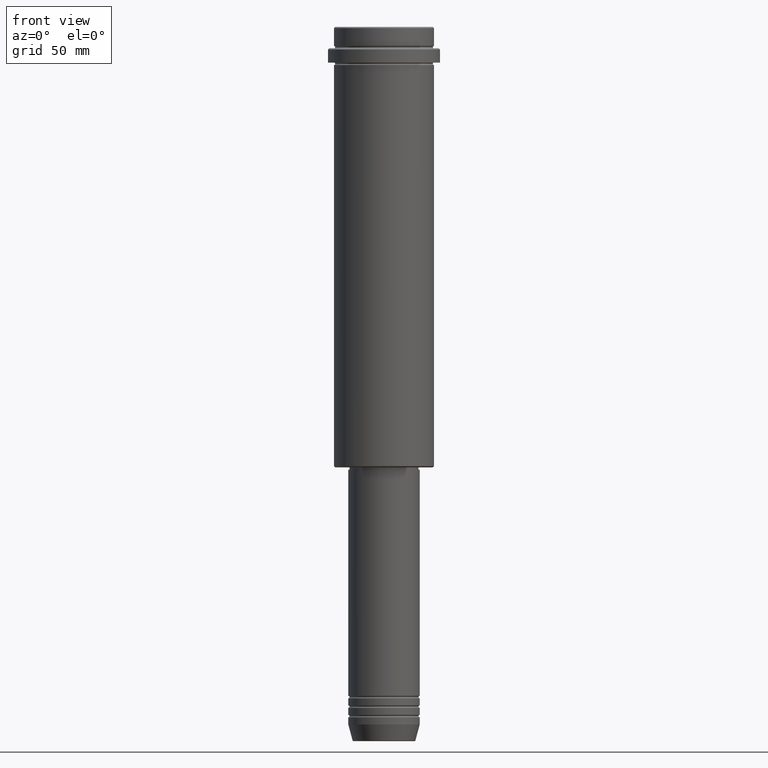
[diagram: clean part render]
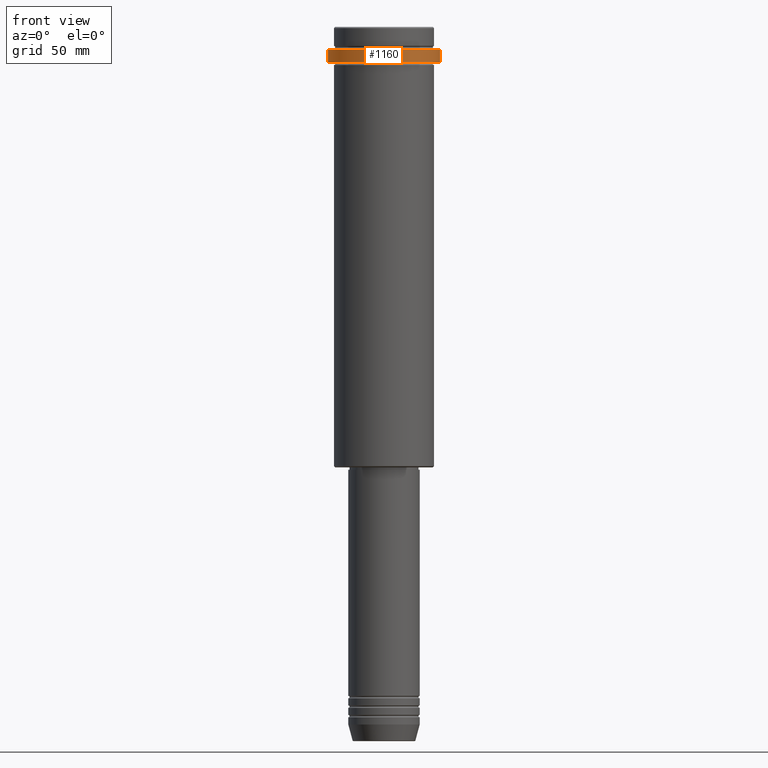
[diagram: same view with one face highlighted and labeled with its STEP entity id]
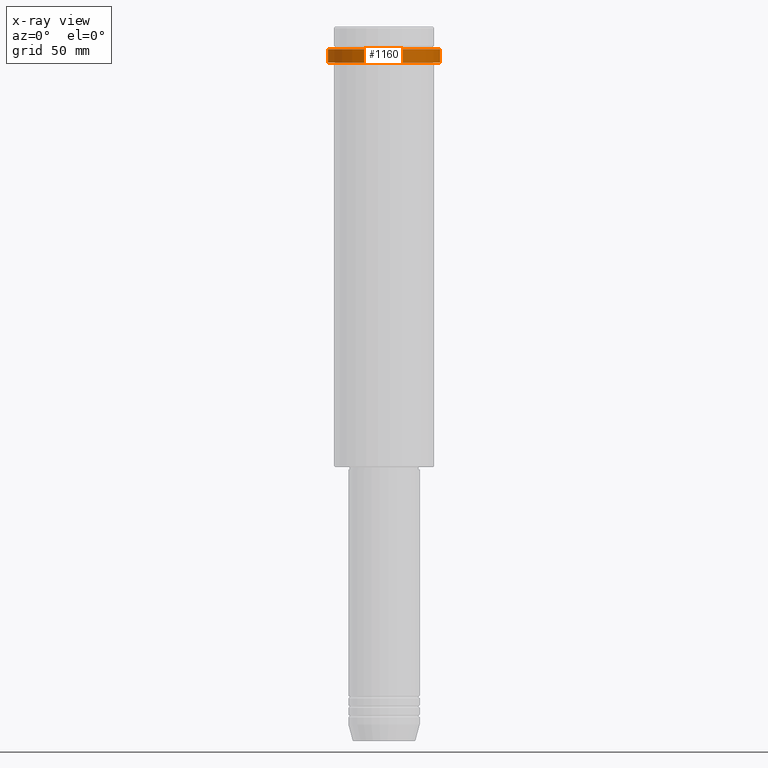
[diagram: x-ray of the same camera — body ghosted, the highlighted face saturated]
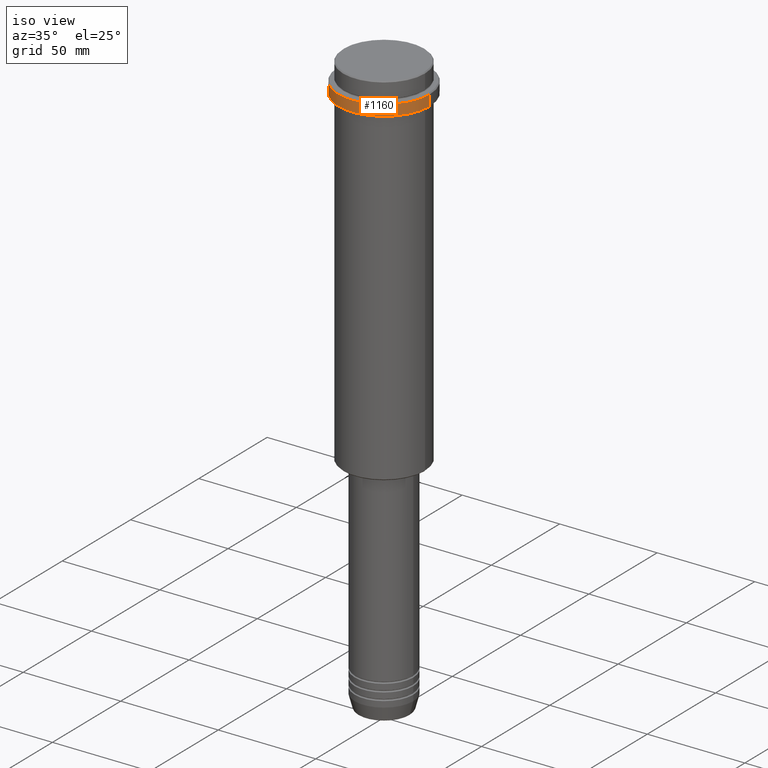
[diagram: same view with one face highlighted and labeled with its STEP entity id]
A machine part, front view. The second image highlights one B-rep face of the part: STEP entity #1160.
The next image is the same camera in x-ray: the body ghosted, the highlighted face saturated — about 0% of this face is hidden behind the body in this view.
A second angle (iso view) of the same face is appended — the face is thin or edge-on in the first view.
In plain terms, the highlighted cylindrical surface (partial cylindrical patch) has radius 23.5 mm, axis along (-0, -0, 1).
Its self-contained STEP definition (entity closure, byte-faithful):
#4 = VERTEX_POINT ( 'NONE', #959 ) ;
#17 = DIRECTION ( 'NONE',  ( -0.000000000000000000, -0.000000000000000000, 1.000000000000000000 ) ) ;
#34 = CARTESIAN_POINT ( 'NONE',  ( -23.50000000000000000, 2.877919977996280320E-15, 0.000000000000000000 ) ) ;
#56 = AXIS2_PLACEMENT_3D ( 'NONE', #773, #223, #1313 ) ;
#100 = CARTESIAN_POINT ( 'NONE',  ( -23.50000000000000711, 2.877919977996281109E-15, -15.00000000000000178 ) ) ;
#223 = DIRECTION ( 'NONE',  ( 0.000000000000000000, 0.000000000000000000, -1.000000000000000000 ) ) ;
#231 = EDGE_CURVE ( 'NONE', #1410, #909, #461, .T. ) ;
#246 = FACE_OUTER_BOUND ( 'NONE', #378, .T. ) ;
#271 = ORIENTED_EDGE ( 'NONE', *, *, #721, .T. ) ;
#272 = CARTESIAN_POINT ( 'NONE',  ( 0.000000000000000000, 0.000000000000000000, 0.000000000000000000 ) ) ;
#366 = DIRECTION ( 'NONE',  ( -0.000000000000000000, -0.000000000000000000, 1.000000000000000000 ) ) ;
#370 = AXIS2_PLACEMENT_3D ( 'NONE', #372, #366, #905 ) ;
#372 = CARTESIAN_POINT ( 'NONE',  ( 0.000000000000000000, 0.000000000000000000, -15.00000000000000178 ) ) ;
#378 = EDGE_LOOP ( 'NONE', ( #1277, #271, #1028, #1294 ) ) ;
#422 = AXIS2_PLACEMENT_3D ( 'NONE', #272, #1233, #473 ) ;
#461 = LINE ( 'NONE', #34, #1058 ) ;
#473 = DIRECTION ( 'NONE',  ( 1.000000000000000000, 0.000000000000000000, 0.000000000000000000 ) ) ;
#528 = CARTESIAN_POINT ( 'NONE',  ( -23.50000000000000000, 2.877919977996280320E-15, -9.499999999999946709 ) ) ;
#693 = CARTESIAN_POINT ( 'NONE',  ( 23.50000000000000000, 0.000000000000000000, -9.499999999999946709 ) ) ;
#705 = VERTEX_POINT ( 'NONE', #693 ) ;
#721 = EDGE_CURVE ( 'NONE', #1410, #4, #1095, .T. ) ;
#756 = VECTOR ( 'NONE', #17, 1000.000000000000000 ) ;
#773 = CARTESIAN_POINT ( 'NONE',  ( 0.000000000000000000, 0.000000000000000000, -9.499999999999946709 ) ) ;
#905 = DIRECTION ( 'NONE',  ( 1.000000000000000000, 0.000000000000000000, 0.000000000000000000 ) ) ;
#909 = VERTEX_POINT ( 'NONE', #528 ) ;
#959 = CARTESIAN_POINT ( 'NONE',  ( 23.50000000000000355, 0.000000000000000000, -15.00000000000000178 ) ) ;
#971 = EDGE_CURVE ( 'NONE', #4, #705, #1417, .T. ) ;
#1001 = DIRECTION ( 'NONE',  ( -0.000000000000000000, -0.000000000000000000, 1.000000000000000000 ) ) ;
#1014 = CYLINDRICAL_SURFACE ( 'NONE', #422, 23.50000000000000000 ) ;
#1028 = ORIENTED_EDGE ( 'NONE', *, *, #971, .T. ) ;
#1058 = VECTOR ( 'NONE', #1001, 1000.000000000000000 ) ;
#1095 = CIRCLE ( 'NONE', #370, 23.50000000000000355 ) ;
#1160 = ADVANCED_FACE ( 'NONE', ( #246 ), #1014, .T. ) ;
#1233 = DIRECTION ( 'NONE',  ( -0.000000000000000000, -0.000000000000000000, 1.000000000000000000 ) ) ;
#1277 = ORIENTED_EDGE ( 'NONE', *, *, #231, .F. ) ;
#1294 = ORIENTED_EDGE ( 'NONE', *, *, #1392, .T. ) ;
#1306 = CARTESIAN_POINT ( 'NONE',  ( 23.50000000000000000, 0.000000000000000000, 0.000000000000000000 ) ) ;
#1313 = DIRECTION ( 'NONE',  ( 1.000000000000000000, 0.000000000000000000, 0.000000000000000000 ) ) ;
#1378 = CIRCLE ( 'NONE', #56, 23.50000000000000000 ) ;
#1392 = EDGE_CURVE ( 'NONE', #705, #909, #1378, .T. ) ;
#1410 = VERTEX_POINT ( 'NONE', #100 ) ;
#1417 = LINE ( 'NONE', #1306, #756 ) ;